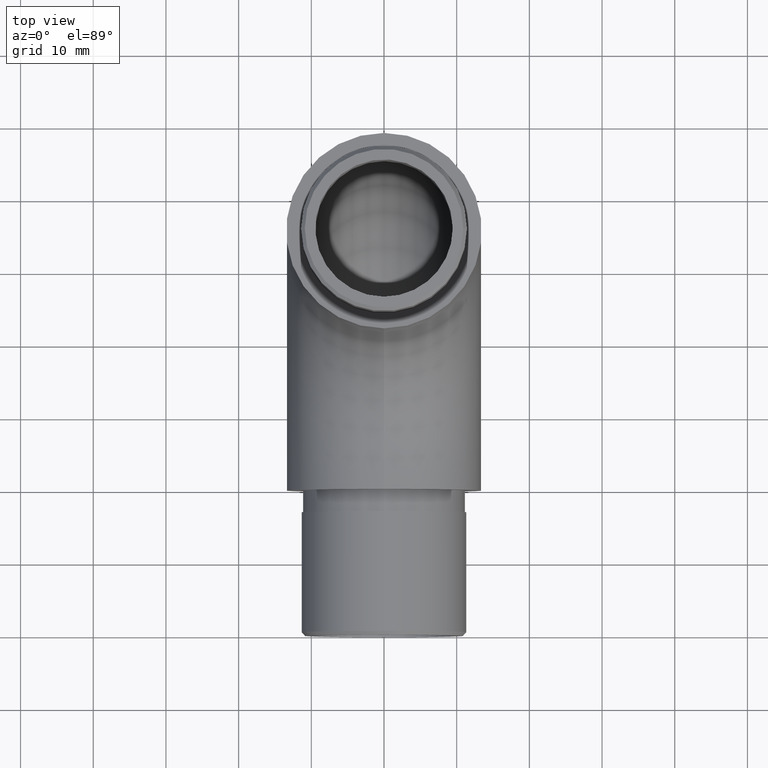
[diagram: clean part render]
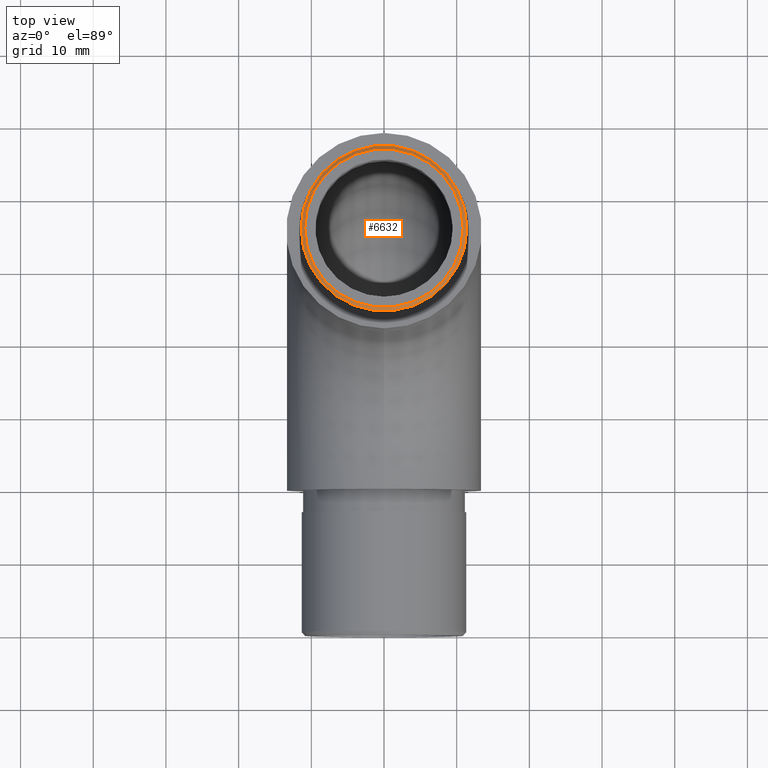
[diagram: same view with one face highlighted and labeled with its STEP entity id]
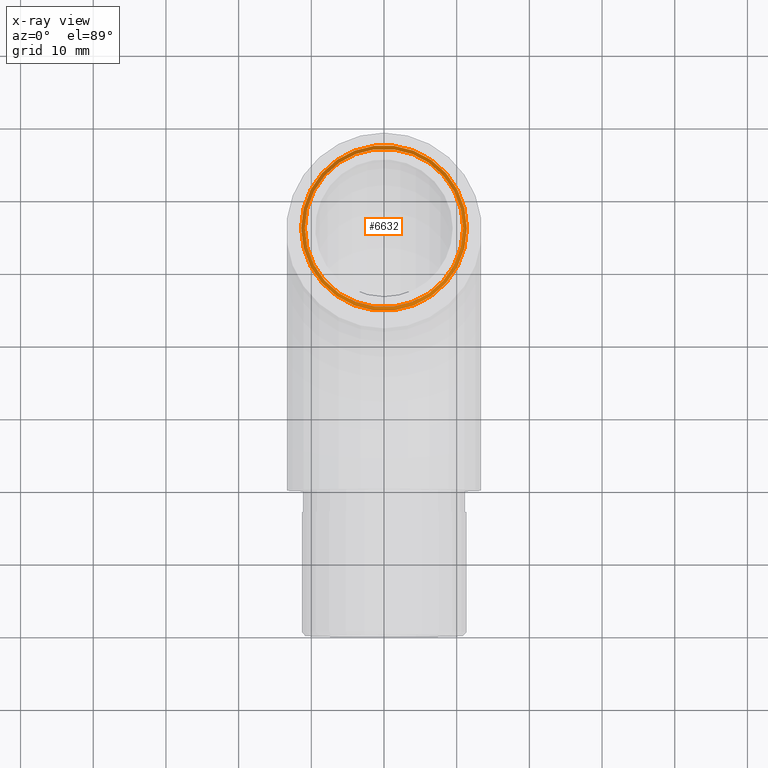
[diagram: x-ray of the same camera — body ghosted, the highlighted face saturated]
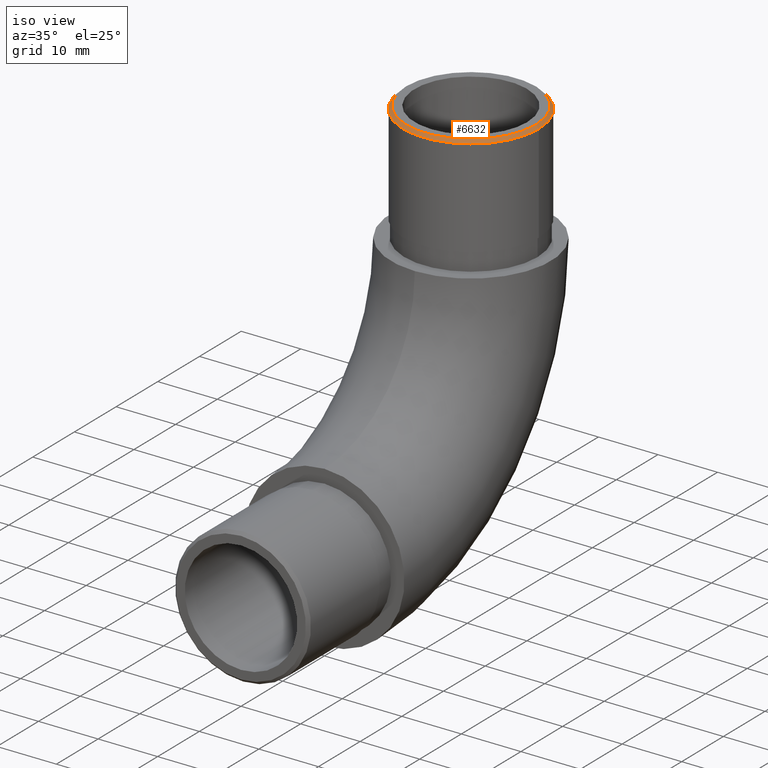
[diagram: same view with one face highlighted and labeled with its STEP entity id]
A machine part, top view. The second image highlights one B-rep face of the part: STEP entity #6632.
The next image is the same camera in x-ray: the body ghosted, the highlighted face saturated — about 0% of this face is hidden behind the body in this view.
A second angle (iso view) of the same face is appended — the face is thin or edge-on in the first view.
In plain terms, the highlighted conical surface has half-angle 45 deg.
Its self-contained STEP definition (entity closure, byte-faithful):
#253 = DIRECTION ( 'NONE',  ( -1.000000000000000000, 0.0000000000000000000, 0.0000000000000000000 ) ) ;
#1657 = CONICAL_SURFACE ( 'NONE', #9405, 10.89999999999999100, 0.7853981633974569400 ) ;
#1797 = CARTESIAN_POINT ( 'NONE',  ( 0.0000000000000000000, 35.14999999999999900, 68.60000000000000900 ) ) ;
#2190 = DIRECTION ( 'NONE',  ( 1.000000000000000000, 0.0000000000000000000, 0.0000000000000000000 ) ) ;
#2715 = CARTESIAN_POINT ( 'NONE',  ( 10.89999999999999100, 35.14999999999999900, 68.60000000000000900 ) ) ;
#2956 = ORIENTED_EDGE ( 'NONE', *, *, #3030, .F. ) ;
#3030 = EDGE_CURVE ( 'NONE', #6659, #6659, #5500, .T. ) ;
#3401 = DIRECTION ( 'NONE',  ( 0.0000000000000000000, 0.0000000000000000000, -1.000000000000000000 ) ) ;
#4970 = EDGE_LOOP ( 'NONE', ( #2956 ) ) ;
#5500 = CIRCLE ( 'NONE', #8479, 11.40000000000000000 ) ;
#5783 = ORIENTED_EDGE ( 'NONE', *, *, #11150, .F. ) ;
#5900 = CARTESIAN_POINT ( 'NONE',  ( 11.40000000000000000, 35.14999999999999900, 68.10000000000000900 ) ) ;
#6536 = AXIS2_PLACEMENT_3D ( 'NONE', #1797, #8771, #9772 ) ;
#6632 = ADVANCED_FACE ( 'NONE', ( #9919, #7282 ), #1657, .T. ) ;
#6659 = VERTEX_POINT ( 'NONE', #5900 ) ;
#7249 = EDGE_LOOP ( 'NONE', ( #5783 ) ) ;
#7282 = FACE_BOUND ( 'NONE', #7249, .T. ) ;
#8479 = AXIS2_PLACEMENT_3D ( 'NONE', #11167, #10168, #2190 ) ;
#8771 = DIRECTION ( 'NONE',  ( 0.0000000000000000000, 0.0000000000000000000, 1.000000000000000000 ) ) ;
#9405 = AXIS2_PLACEMENT_3D ( 'NONE', #12282, #3401, #253 ) ;
#9772 = DIRECTION ( 'NONE',  ( 1.000000000000000000, 0.0000000000000000000, 0.0000000000000000000 ) ) ;
#9913 = VERTEX_POINT ( 'NONE', #2715 ) ;
#9919 = FACE_OUTER_BOUND ( 'NONE', #4970, .T. ) ;
#10168 = DIRECTION ( 'NONE',  ( 0.0000000000000000000, 0.0000000000000000000, -1.000000000000000000 ) ) ;
#11150 = EDGE_CURVE ( 'NONE', #9913, #9913, #12287, .T. ) ;
#11167 = CARTESIAN_POINT ( 'NONE',  ( 0.0000000000000000000, 35.14999999999999900, 68.10000000000000900 ) ) ;
#12282 = CARTESIAN_POINT ( 'NONE',  ( 0.0000000000000000000, 35.14999999999999900, 68.60000000000000900 ) ) ;
#12287 = CIRCLE ( 'NONE', #6536, 10.89999999999999100 ) ;